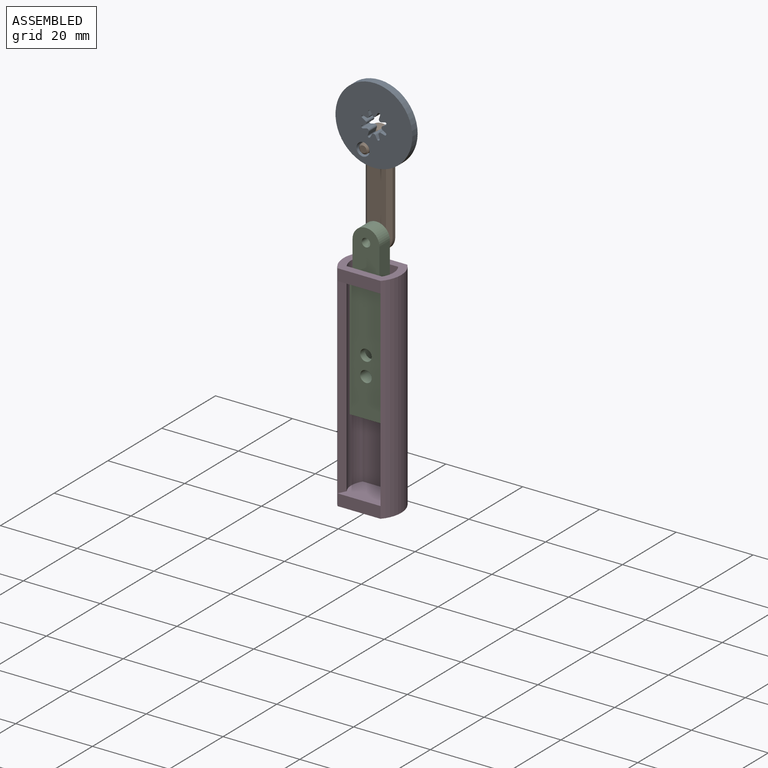
[diagram: assembled view]
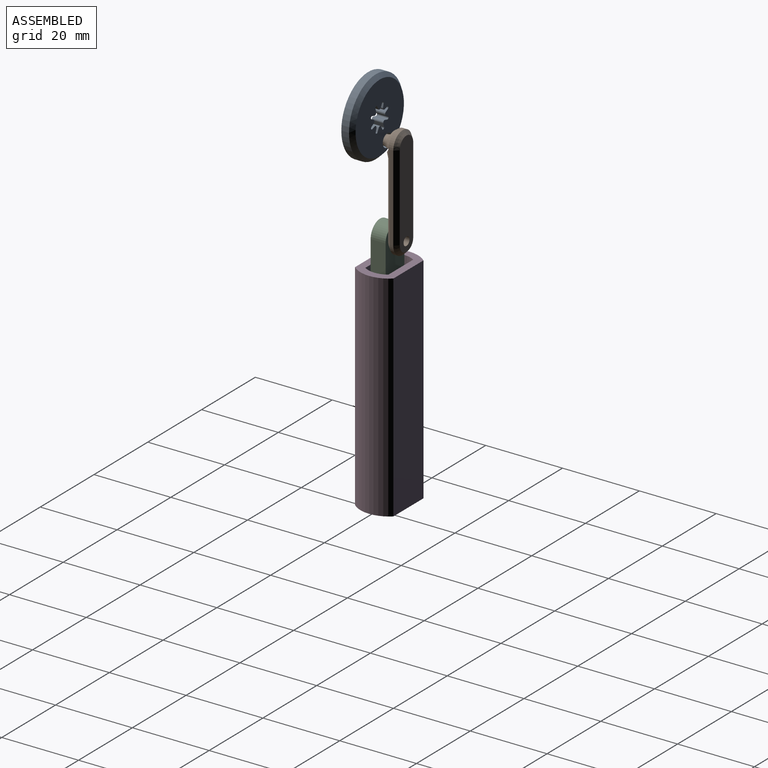
[diagram: assembled view, second angle]
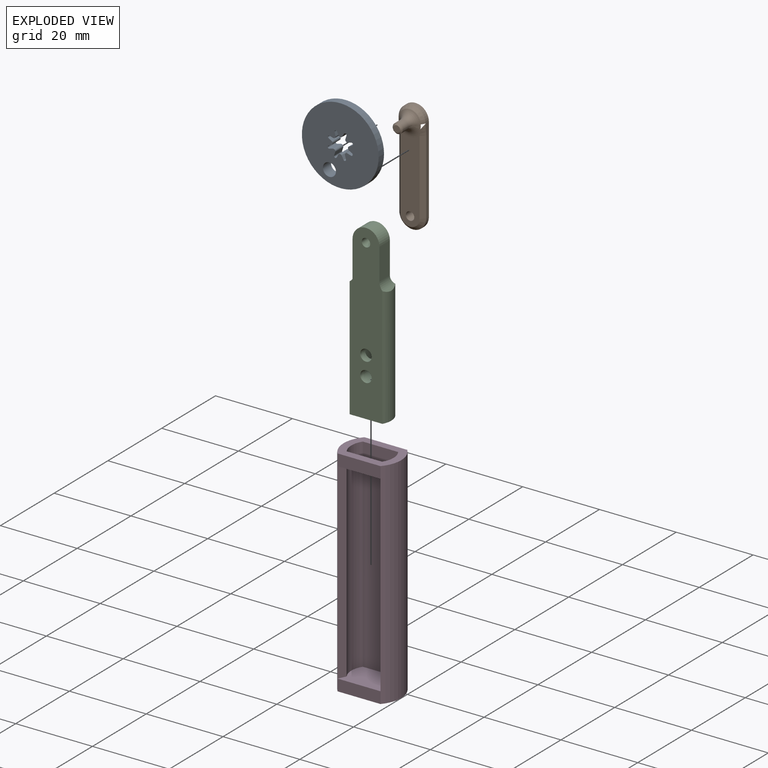
[diagram: exploded view]
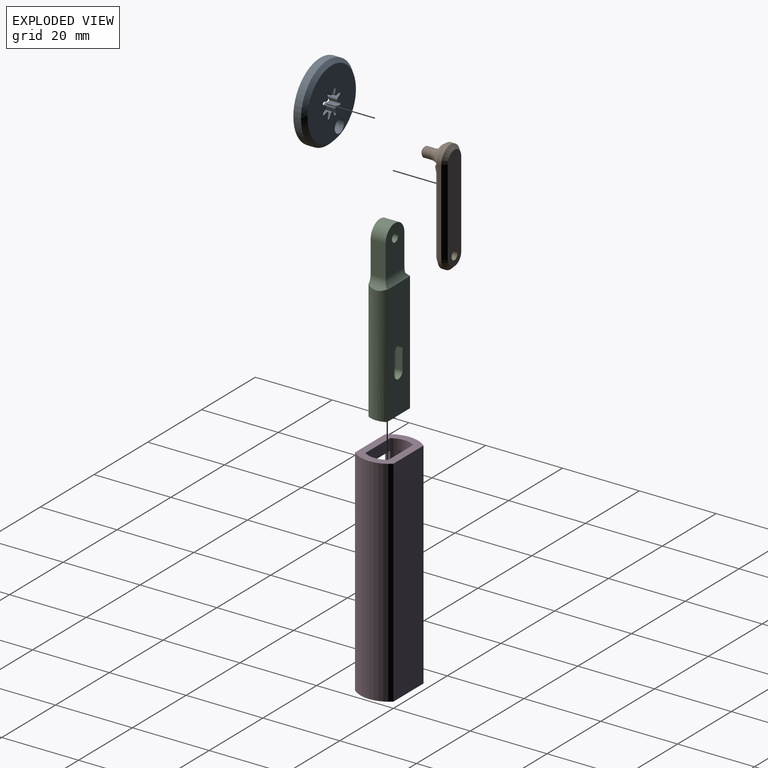
[diagram: exploded view, second angle]
ASSEMBLY  parts=4 mates=6
PART A: 53 faces, bbox 20x3x20 mm
  f0: cylinder r=0.35mm len=3mm, axis (0,1,0), area 3.1mm2, adj f1,f49,f50,f51
  f1: plane 3x0.96mm, normal (-0.99,0,-0.11), area 2.9mm2, adj f0,f2,f50,f51
  f2: cylinder r=0.45mm len=3mm, axis (0,1,0), area 1.5mm2, adj f1,f3,f50,f51
  f3: cylinder r=2mm len=3mm, axis (0,1,0), area 0.2mm2, adj f2,f4,f50,f51
  f4: cylinder r=0.45mm len=3mm, axis (0,1,0), area 1.5mm2, adj f3,f5,f50,f51
  f5: plane 3x0.75mm, normal (0.63,0,-0.78), area 2.9mm2, adj f4,f6,f50,f51
  f6: cylinder r=0.35mm len=3mm, axis (0,1,0), area 3.1mm2, adj f5,f7,f50,f51
  f7: plane 3x0.75mm, normal (-0.78,0,0.63), area 2.9mm2, adj f6,f8,f50,f51
  f8: cylinder r=0.45mm len=3mm, axis (0,1,0), area 1.5mm2, adj f7,f9,f50,f51
  f9: cylinder r=2mm len=3mm, axis (0,1,0), area 0.2mm2, adj f8,f10,f50,f51
  f10: cylinder r=0.45mm len=3mm, axis (0,1,0), area 1.5mm2, adj f9,f11,f50,f51
  f11: plane 3x0.96mm, normal (-0.11,0,-0.99), area 2.9mm2, adj f10,f12,f50,f51
  f12: cylinder r=0.35mm len=3mm, axis (0,1,0), area 3.1mm2, adj f11,f13,f50,f51
  f13: plane 3x0.96mm, normal (-0.11,0,0.99), area 2.9mm2, adj f12,f14,f50,f51
  f14: cylinder r=0.45mm len=3mm, axis (0,1,0), area 1.5mm2, adj f13,f15,f50,f51
  f15: cylinder r=2mm len=3mm, axis (0,1,0), area 0.2mm2, adj f14,f16,f50,f51
  f16: cylinder r=0.45mm len=3mm, axis (0,1,0), area 1.5mm2, adj f15,f17,f50,f51
  f17: plane 3x0.75mm, normal (-0.78,0,-0.63), area 2.9mm2, adj f16,f18,f50,f51
  f18: cylinder r=0.35mm len=3mm, axis (0,1,0), area 3.1mm2, adj f17,f19,f50,f51
  f19: plane 3x0.75mm, normal (0.63,0,0.78), area 2.9mm2, adj f18,f20,f50,f51
  f20: cylinder r=0.45mm len=3mm, axis (0,1,0), area 1.5mm2, adj f19,f21,f50,f51
  f21: cylinder r=1.75mm len=3mm, axis (0,1,0), area 0.2mm2, adj f20,f22,f50,f51
  f22: cylinder r=0.45mm len=3mm, axis (0,1,0), area 1.5mm2, adj f21,f23,f50,f51
  f23: plane 3x0.96mm, normal (-0.99,0,0.11), area 2.9mm2, adj f22,f24,f50,f51
  f24: cylinder r=0.35mm len=3mm, axis (0,1,0), area 3.1mm2, adj f23,f25,f50,f51
  f25: plane 3x0.96mm, normal (0.99,0,0.11), area 2.9mm2, adj f24,f26,f50,f51
  f26: cylinder r=0.45mm len=3mm, axis (0,1,0), area 1.5mm2, adj f25,f27,f50,f51
  f27: cylinder r=2mm len=3mm, axis (0,1,0), area 0.2mm2, adj f26,f28,f50,f51
  f28: cylinder r=0.45mm len=3mm, axis (0,1,0), area 1.5mm2, adj f27,f29,f50,f51
  f29: plane 3x0.75mm, normal (-0.63,0,0.78), area 2.9mm2, adj f28,f30,f50,f51
  f30: cylinder r=0.35mm len=3mm, axis (0,1,0), area 3.1mm2, adj f29,f31,f50,f51
  f31: plane 3x0.75mm, normal (0.78,0,-0.63), area 2.9mm2, adj f30,f32,f50,f51
  f32: cylinder r=0.45mm len=3mm, axis (0,1,0), area 1.5mm2, adj f31,f33,f50,f51
  f33: cylinder r=2mm len=3mm, axis (0,1,0), area 0.2mm2, adj f32,f34,f50,f51
  f34: cylinder r=0.45mm len=3mm, axis (0,1,0), area 1.5mm2, adj f33,f35,f50,f51
  f35: plane 3x0.96mm, normal (0.11,0,0.99), area 2.9mm2, adj f34,f36,f50,f51
  f36: cylinder r=0.35mm len=3mm, axis (0,1,0), area 3.1mm2, adj f35,f37,f50,f51
  f37: plane 3x0.96mm, normal (0.11,0,-0.99), area 2.9mm2, adj f36,f38,f50,f51
  f38: cylinder r=0.45mm len=3mm, axis (0,1,0), area 1.5mm2, adj f37,f39,f50,f51
  f39: cylinder r=2mm len=3mm, axis (0,1,0), area 0.2mm2, adj f38,f40,f50,f51
  f40: cylinder r=0.45mm len=3mm, axis (0,1,0), area 1.5mm2, adj f39,f41,f50,f51
  f41: plane 3x0.75mm, normal (0.78,0,0.63), area 2.9mm2, adj f40,f42,f50,f51
  f42: cylinder r=0.35mm len=3mm, axis (0,1,0), area 3.1mm2, adj f41,f43,f50,f51
  f43: plane 3x0.75mm, normal (-0.63,0,-0.78), area 2.9mm2, adj f42,f44,f50,f51
  f44: cylinder r=0.45mm len=3mm, axis (0,1,0), area 1.5mm2, adj f43,f45,f50,f51
  f45: cylinder r=2mm len=3mm, axis (0,1,0), area 0.2mm2, adj f44,f46,f50,f51
  f46: cylinder r=0.45mm len=3mm, axis (0,1,0), area 1.5mm2, adj f45,f49,f50,f51
  f47: cylinder r=10mm len=20mm, axis (0,1,0), area 125.7mm2, adj f51,f52
  f48: cylinder r=1.7mm len=3.4mm, axis (0,1,0), area 32mm2, adj f50,f51
  f49: plane 3x0.96mm, normal (0.99,0,-0.11), area 2.9mm2, adj f0,f46,f50,f51
  f50: plane 18x18mm, normal (0,-1,0), area 223.3mm2, adj f0,f1,f2,f3,f4,f5,f6,f7
  f51: plane 20x20mm, normal (0,1,0), area 283mm2, adj f0,f1,f2,f3,f4,f5,f6,f7
  f52: cone r=9mm half-angle=45deg, axis (0,1,0), area 84.4mm2, adj f47,f50
PART B: 26 faces, bbox 11.5x8.4x30.4 mm
  f0: cylinder r=3.5mm len=7mm, axis (0,1,0), area 11mm2, adj f1,f4,f17,f23
  f1: plane 22.81x1.64mm, normal (-1,0,0), area 22.7mm2, adj f0,f2,f14,f15,f16,f25
  f2: cylinder r=3.5mm len=7mm, axis (0,1,0), area 13.6mm2, adj f1,f4,f18,f24
  f3: cylinder r=1.1mm len=3mm, axis (0,1,0), area 20.7mm2, adj f5,f6
  f4: plane 22.81x1.64mm, normal (1,0,0), area 22.7mm2, adj f0,f2,f19,f20,f21,f22
  f5: plane 22.04x5mm, normal (0,-1,0), area 100.5mm2, adj f3,f10,f15,f17,f19
  f6: plane 27.4x5mm, normal (0,1,0), area 127.8mm2, adj f3,f22,f23,f24,f25
  f7: cylinder r=1.3mm len=2.6mm, axis (0,1,0), area 17.2mm2, adj f9,f10,f11,f12,f13
  f8: plane 1.8x1.8mm, normal (0,-1,0), area 2.5mm2, adj f13
  f9: bspline ~2.75x2.4mm, area 2.2mm2, adj f7,f10,f11,f20
  f10: torus R=3.8mm, axis (0,-1,0), area 19mm2, adj f5,f7,f9,f12,f14,f21
  f11: torus R=3.8mm, axis (0,1,0), area 17.3mm2, adj f7,f9,f12,f18
  f12: bspline ~2.74x2.68mm, area 2.3mm2, adj f7,f10,f11,f16
  f13: cone r=0.9mm half-angle=45deg, axis (0,1,0), area 3.9mm2, adj f7,f8
  f14: bspline ~1.8x1.13mm, area 2.3mm2, adj f1,f10,f15,f16
  f15: plane 19.54x1mm, normal (-0.71,-0.71,0), area 27.6mm2, adj f1,f5,f14,f17
  f16: bspline ~1.18x0.99mm, area 1.2mm2, adj f1,f12,f14,f18
  f17: cone r=2.5mm half-angle=45deg, axis (0,1,0), area 13.3mm2, adj f0,f5,f15,f19
  f18: cone r=2.87mm half-angle=34.1deg, axis (0,1,0), area 11.2mm2, adj f2,f11,f16,f20
  f19: plane 19.54x1mm, normal (0.71,-0.71,0), area 27.6mm2, adj f4,f5,f17,f21
  f20: bspline ~1.18x0.99mm, area 1.3mm2, adj f4,f9,f18,f21
  f21: bspline ~1.8x1.13mm, area 2.3mm2, adj f4,f10,f19,f20
  f22: plane 22.4x1mm, normal (0.71,0.71,0), area 31.7mm2, adj f4,f6,f23,f24
  f23: cone r=3.5mm half-angle=45deg, axis (0,-1,0), area 13.3mm2, adj f0,f6,f22,f25
  f24: cone r=3.5mm half-angle=45deg, axis (0,-1,0), area 13.3mm2, adj f2,f6,f22,f25
  f25: plane 22.4x1mm, normal (-0.71,0.71,0), area 31.7mm2, adj f1,f6,f23,f24
PART C: 20 faces, bbox 45x9.8x4.8 mm
  f0: plane 31.1x8.54mm, normal (0,0,-1), area 243.6mm2, adj f2,f3,f4,f10,f14,f15,f17,f18
  f1: plane 45x8.54mm, normal (0,0,1), area 340.8mm2, adj f2,f3,f4,f5,f7,f8,f9,f12
  f2: cylinder r=4.9mm len=31.23mm, axis (-1,0,0), area 154.5mm2, adj f0,f1,f4,f10,f11,f12,f13
  f3: cylinder r=4.9mm len=31.23mm, axis (-1,0,0), area 154.5mm2, adj f0,f1,f4,f9,f10,f13
  f4: plane 9.8x4.8mm, normal (-1,0,0), area 45.1mm2, adj f0,f1,f2,f3
  f5: plane 8.26x3.9mm, normal (0,-1,0), area 32.2mm2, adj f1,f6,f8,f12
  f6: plane 11.76x7mm, normal (0,0,-1), area 73.2mm2, adj f5,f7,f8,f13,f19
  f7: plane 9.5x4.17mm, normal (0,1,0), area 37.2mm2, adj f1,f6,f8,f9,f13
  f8: cylinder r=3.5mm len=7mm, axis (0,0,-1), area 42.9mm2, adj f1,f5,f6,f7
  f9: plane 4.72x1.4mm, normal (0.71,0.71,0), area 7.7mm2, adj f1,f3,f7,f13
  f10: plane 8.57x0.02mm, normal (0.71,0,-0.71), area 0.3mm2, adj f0,f2,f3,f13
  f11: plane 4.4x0.52mm, normal (0.71,-0.71,0), area 2.2mm2, adj f2,f12
  f12: cylinder r=3mm len=4.72mm, axis (0,0,1), area 9.9mm2, adj f1,f2,f5,f11,f13
  f13: cylinder r=3mm len=8.63mm, axis (0,-1,0), area 17.7mm2, adj f2,f3,f6,f7,f9,f10,f12
  f14: cylinder r=1.5mm len=4.8mm, axis (0,0,-1), area 31.1mm2, adj f0,f1,f16,f17,f18
  f15: cylinder r=1.5mm len=4.8mm, axis (0,0,-1), area 31.1mm2, adj f0,f1,f16,f17,f18
  f16: plane 5x3mm, normal (0,0,-1), area 7.9mm2, adj f14,f15,f17,f18
  f17: plane 5x3mm, normal (0,1,0), area 15mm2, adj f0,f14,f15,f16
  f18: plane 5x3mm, normal (0,-1,0), area 15mm2, adj f0,f14,f15,f16
  f19: cylinder r=1.1mm len=3.9mm, axis (0,0,1), area 27mm2, adj f1,f6
PART D: 15 faces, bbox 15x10x56 mm
  f0: plane 11.18x3mm, normal (0,-1,0), area 33.5mm2, adj f1,f3,f4,f5
  f1: cylinder r=7.5mm len=56mm, axis (0,0,1), area 613mm2, adj f0,f2,f4,f7,f11,f12
  f2: plane 56x11.18mm, normal (0,1,0), area 626.1mm2, adj f1,f3,f4,f12
  f3: cylinder r=7.5mm len=56mm, axis (0,0,1), area 613mm2, adj f0,f2,f4,f8,f11,f12
  f4: plane 15x10mm, normal (0,0,-1), area 138mm2, adj f0,f1,f2,f3
  f5: plane 11.18x8mm, normal (0,0,1), area 83mm2, adj f0,f6,f7,f8,f9,f10
  f6: cylinder r=5.5mm len=53mm, axis (0,0,-1), area 336.4mm2, adj f5,f7,f10,f12,f14
  f7: plane 50x2mm, normal (-0.9,-0.44,0), area 111.4mm2, adj f1,f5,f6,f13
  f8: plane 50x2mm, normal (0.9,-0.44,0), area 111.4mm2, adj f3,f5,f9,f13
  f9: cylinder r=5.5mm len=53mm, axis (0,0,-1), area 336.4mm2, adj f5,f8,f10,f12,f14
  f10: plane 53x9.22mm, normal (0,-1,0), area 488.6mm2, adj f5,f6,f9,f12
  f11: plane 11.18x3mm, normal (0,-1,0), area 33.5mm2, adj f1,f3,f12,f13
  f12: plane 15x10mm, normal (0,0,1), area 75.4mm2, adj f1,f2,f3,f6,f9,f10,f11,f14
  f13: plane 11.18x2mm, normal (0,0,-1), area 20.4mm2, adj f7,f8,f11,f14
  f14: plane 9.22x3mm, normal (0,1,0), area 27.7mm2, adj f6,f9,f12,f13
PLACE A rot(axis=(-0.98,0,0.21),180deg) t=(-2.76,-8.5,91.3)mm
PLACE B rot(axis=(0,-1,0),180deg) t=(-5.59,-0.5,84.9)mm
PLACE C rot(axis=(0.58,-0.58,0.58),120deg) t=(-5.59,-5,21)mm
PLACE D t=(-5.59,-5,3)mm
MATE planar A.f48 <-> B.f7  axis (0,-1,0) through (-5.59,-8.5,84.9)mm
MATE cylindrical A.f48 <-> B.f7  axis (0,1,0) through (-5.59,-5.5,84.9)mm
MATE parallel C.f3 <-> D.f9  axis (0,0,-1) through (-5.59,-5,21)mm
MATE planar B.f0 <-> C.f8  axis (0,-1,0) through (-5.59,-3.5,62.5)mm
MATE cylindrical B.f0 <-> C.f8  axis (0,1,0) through (-5.59,-3.5,62.5)mm
MATE slider C.f2 <-> D.f9  axis (0,0,-1) through (-5.59,-5,21)mm
